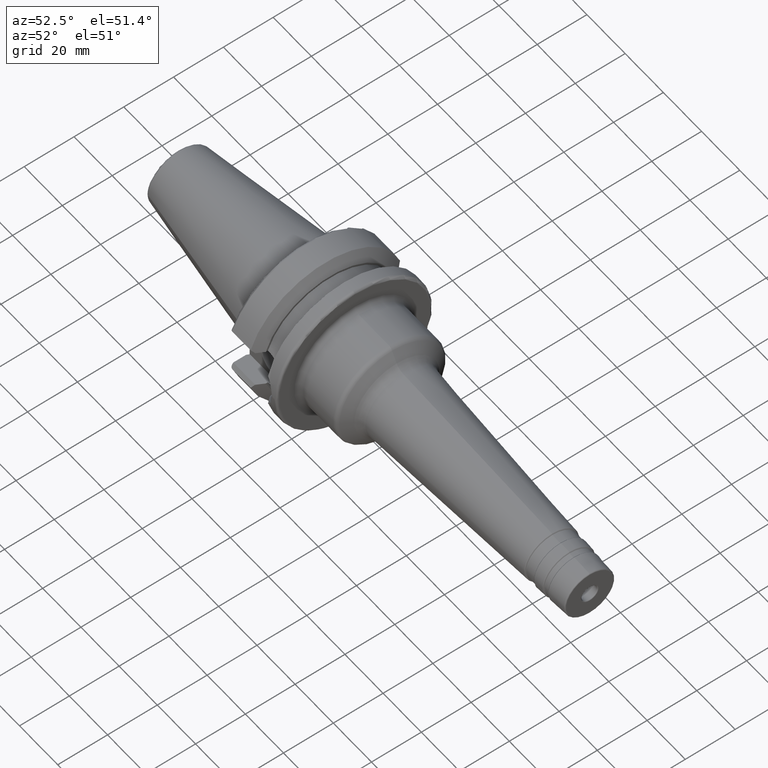
[diagram: clean part render]
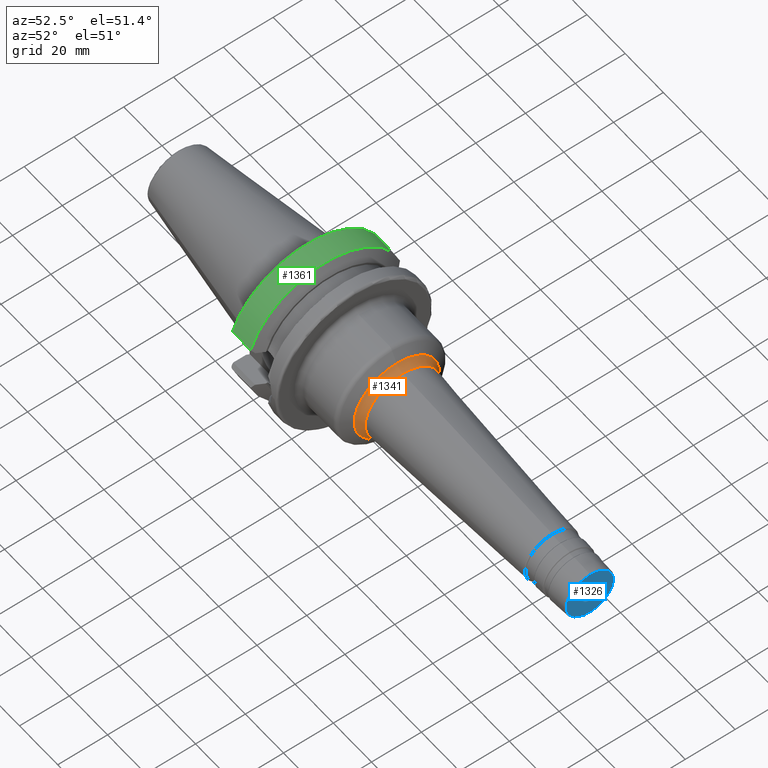
[diagram: same view with three faces highlighted in distinct colors, each labeled with its STEP entity id]
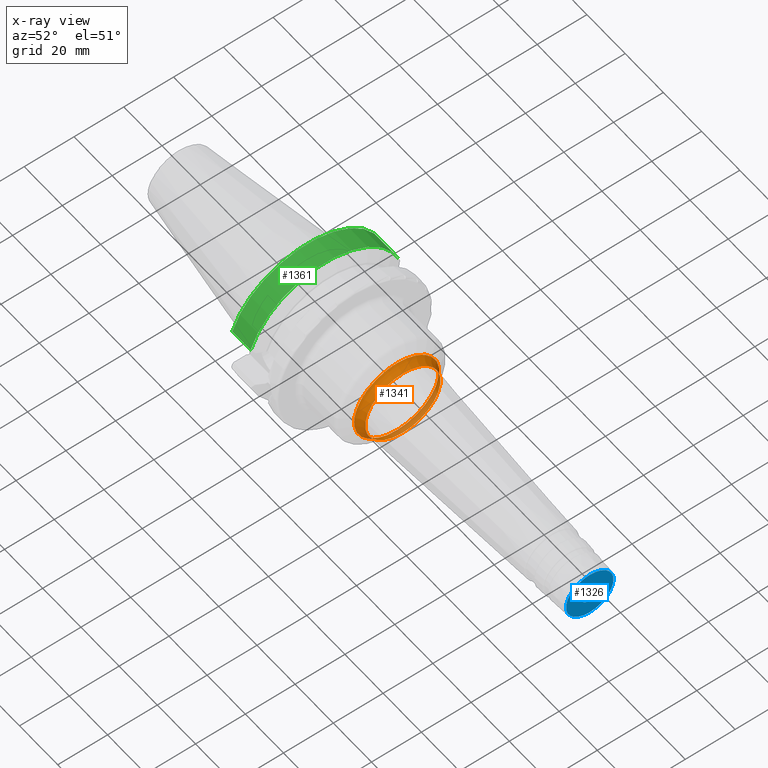
[diagram: x-ray of the same camera — body ghosted, the three highlighted faces saturated]
A machine part, auxiliary view with three faces highlighted in distinct colors.
The next image is the same camera in x-ray (body ghosted, the three faces saturated) — at least one of them is partly hidden behind the body in this view.
Their STEP definitions:

[orange] entity #1341 — the highlighted toroidal blend (fillet) surface has major radius 19.1216 mm and minor (blend) radius 4 mm.
#92=TOROIDAL_SURFACE('',#1494,19.1216316443699,4.);
#152=FACE_OUTER_BOUND('',#241,.T.);
#241=EDGE_LOOP('',(#990,#991,#992,#993));
#476=CIRCLE('',#1465,15.1271135053516);
#493=CIRCLE('',#1493,17.1216316443699);
#494=CIRCLE('',#1495,4.);
#570=VERTEX_POINT('',#2123);
#581=VERTEX_POINT('',#2166);
#711=EDGE_CURVE('',#570,#570,#476,.T.);
#731=EDGE_CURVE('',#581,#581,#493,.T.);
#733=EDGE_CURVE('',#581,#570,#494,.T.);
#990=ORIENTED_EDGE('',*,*,#731,.T.);
#991=ORIENTED_EDGE('',*,*,#733,.T.);
#992=ORIENTED_EDGE('',*,*,#711,.T.);
#993=ORIENTED_EDGE('',*,*,#733,.F.);
#1341=ADVANCED_FACE('',(#152),#92,.F.);
#1465=AXIS2_PLACEMENT_3D('',#2125,#1703,#1704);
#1493=AXIS2_PLACEMENT_3D('',#2167,#1762,#1763);
#1494=AXIS2_PLACEMENT_3D('',#2169,#1765,#1766);
#1495=AXIS2_PLACEMENT_3D('',#2170,#1767,#1768);
#1703=DIRECTION('center_axis',(-1.,0.,0.));
#1704=DIRECTION('ref_axis',(0.,0.,1.));
#1762=DIRECTION('center_axis',(1.,0.,0.));
#1763=DIRECTION('ref_axis',(0.,-1.43981039892673E-32,1.));
#1765=DIRECTION('center_axis',(1.,0.,0.));
#1766=DIRECTION('ref_axis',(0.,0.,-1.));
#1767=DIRECTION('center_axis',(0.,-1.,-1.22464679914735E-16));
#1768=DIRECTION('ref_axis',(0.,-1.22464679914735E-16,1.));
#2123=CARTESIAN_POINT('',(52.1688463908891,-1.85253711346675E-15,15.1271135053516));
#2125=CARTESIAN_POINT('Origin',(52.1688463908891,-1.85253711346675E-15,
0.));
#2166=CARTESIAN_POINT('',(48.9140886007231,-2.09679513894576E-15,17.1216316443699));
#2167=CARTESIAN_POINT('Origin',(48.9140886007231,-2.09679513894576E-15,
0.));
#2169=CARTESIAN_POINT('Origin',(52.3781902158609,0.,0.));
#2170=CARTESIAN_POINT('Origin',(52.3781902158609,-2.34172449877523E-15,
19.1216316443699));

[blue] entity #1326 — the highlighted planar face has unit normal (1, 0, 0).
#50=FACE_BOUND('',#225,.T.);
#100=PLANE('',#1457);
#137=FACE_OUTER_BOUND('',#224,.T.);
#224=EDGE_LOOP('',(#932));
#225=EDGE_LOOP('',(#933));
#471=CIRCLE('',#1456,3.575);
#472=CIRCLE('',#1458,9.52551771664256);
#566=VERTEX_POINT('',#2108);
#567=VERTEX_POINT('',#2112);
#704=EDGE_CURVE('',#566,#566,#471,.T.);
#705=EDGE_CURVE('',#567,#567,#472,.T.);
#932=ORIENTED_EDGE('',*,*,#705,.F.);
#933=ORIENTED_EDGE('',*,*,#704,.F.);
#1326=ADVANCED_FACE('',(#137,#50),#100,.T.);
#1456=AXIS2_PLACEMENT_3D('',#2110,#1683,#1684);
#1457=AXIS2_PLACEMENT_3D('',#2111,#1685,#1686);
#1458=AXIS2_PLACEMENT_3D('',#2113,#1687,#1688);
#1683=DIRECTION('center_axis',(1.,0.,0.));
#1684=DIRECTION('ref_axis',(0.,1.22464679914735E-16,1.));
#1685=DIRECTION('center_axis',(1.,0.,0.));
#1686=DIRECTION('ref_axis',(0.,0.,-1.));
#1687=DIRECTION('center_axis',(-1.,0.,0.));
#1688=DIRECTION('ref_axis',(0.,1.22464679914735E-16,1.));
#2108=CARTESIAN_POINT('',(150.,-4.37811230695179E-16,3.575));
#2110=CARTESIAN_POINT('Origin',(150.,0.,0.));
#2111=CARTESIAN_POINT('Origin',(150.,0.,-3.175));
#2112=CARTESIAN_POINT('',(150.,-1.16653947819077E-15,9.52551771664256));
#2113=CARTESIAN_POINT('Origin',(150.,0.,0.));

[green] entity #1361 — the highlighted cylindrical surface (partial cylindrical patch) has radius 31.5 mm, axis along (1, 0, 0).
#172=FACE_OUTER_BOUND('',#263,.T.);
#263=EDGE_LOOP('',(#1082,#1083,#1084,#1085));
#333=LINE('',#2401,#406);
#339=LINE('',#2442,#412);
#406=VECTOR('',#1854,10.);
#412=VECTOR('',#1874,10.);
#516=CIRCLE('',#1535,31.5);
#517=CIRCLE('',#1537,31.5000000000001);
#616=VERTEX_POINT('',#2396);
#617=VERTEX_POINT('',#2400);
#624=VERTEX_POINT('',#2427);
#625=VERTEX_POINT('',#2440);
#781=EDGE_CURVE('',#616,#617,#333,.T.);
#790=EDGE_CURVE('',#624,#617,#516,.T.);
#792=EDGE_CURVE('',#625,#616,#517,.T.);
#793=EDGE_CURVE('',#624,#625,#339,.T.);
#1082=ORIENTED_EDGE('',*,*,#781,.F.);
#1083=ORIENTED_EDGE('',*,*,#792,.F.);
#1084=ORIENTED_EDGE('',*,*,#793,.F.);
#1085=ORIENTED_EDGE('',*,*,#790,.T.);
#1304=CYLINDRICAL_SURFACE('',#1536,31.5);
#1361=ADVANCED_FACE('',(#172),#1304,.T.);
#1535=AXIS2_PLACEMENT_3D('',#2428,#1868,#1869);
#1536=AXIS2_PLACEMENT_3D('',#2439,#1870,#1871);
#1537=AXIS2_PLACEMENT_3D('',#2441,#1872,#1873);
#1854=DIRECTION('',(-1.,0.,0.));
#1868=DIRECTION('center_axis',(1.,0.,0.));
#1869=DIRECTION('ref_axis',(0.,0.,-1.));
#1870=DIRECTION('center_axis',(1.,0.,0.));
#1871=DIRECTION('ref_axis',(0.,1.,0.));
#1872=DIRECTION('center_axis',(1.,0.,0.));
#1873=DIRECTION('ref_axis',(0.,0.,-1.));
#1874=DIRECTION('',(1.,0.,0.));
#2396=CARTESIAN_POINT('',(11.5690363073381,-30.0059801089944,9.58598757033588));
#2400=CARTESIAN_POINT('',(1.99999999999999,-30.0059801089944,9.58598757033586));
#2401=CARTESIAN_POINT('',(6.78451815366905,-30.0059801089944,9.58598757033587));
#2427=CARTESIAN_POINT('',(1.99999999999999,30.0059801089944,9.58598757033586));
#2428=CARTESIAN_POINT('Origin',(1.99999999999999,0.,0.));
#2439=CARTESIAN_POINT('Origin',(6.78451815366905,0.,0.));
#2440=CARTESIAN_POINT('',(11.5690363073381,30.0059801089944,9.58598757033588));
#2441=CARTESIAN_POINT('Origin',(11.5690363073381,0.,0.));
#2442=CARTESIAN_POINT('',(6.78451815366905,30.0059801089944,9.58598757033587));